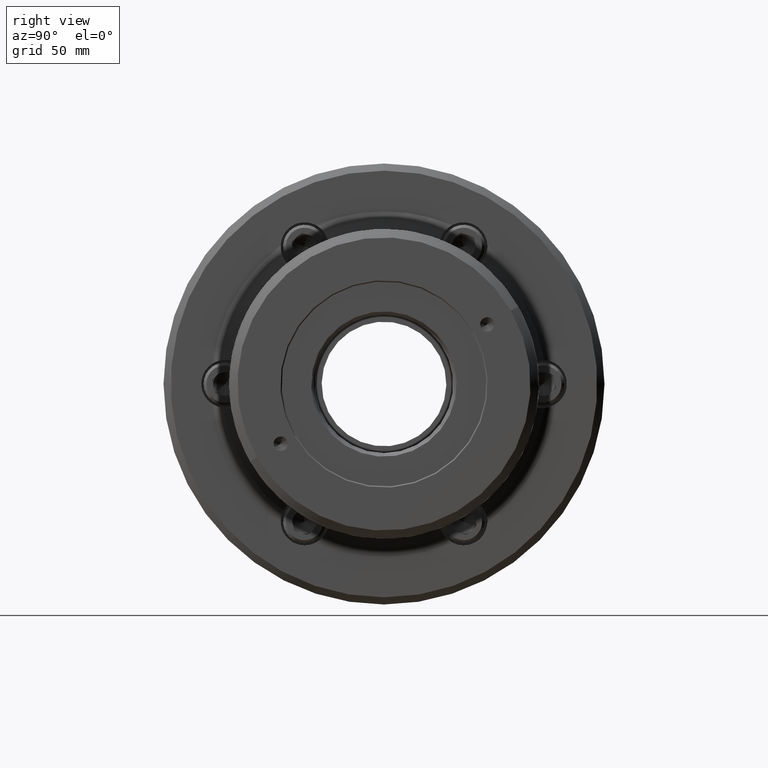
[diagram: clean part render]
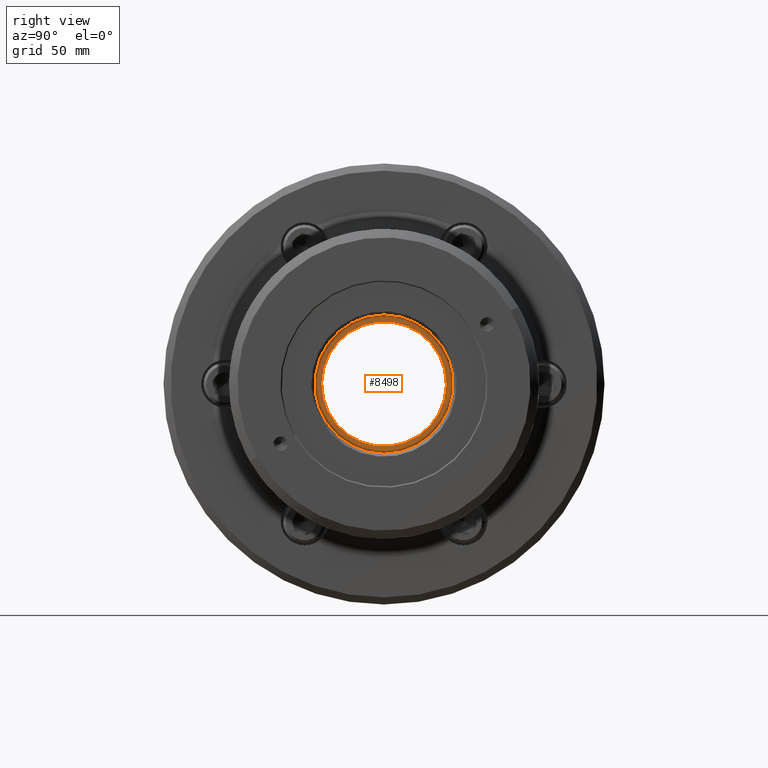
[diagram: same view with one face highlighted and labeled with its STEP entity id]
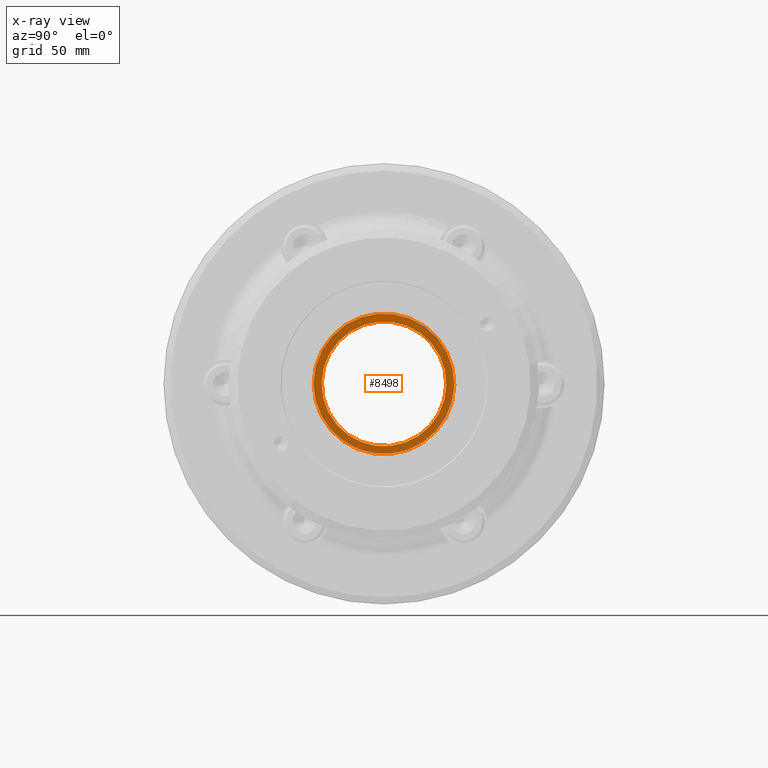
[diagram: x-ray of the same camera — body ghosted, the highlighted face saturated]
A machine part, right view. The second image highlights one B-rep face of the part: STEP entity #8498.
The next image is the same camera in x-ray: the body ghosted, the highlighted face saturated — about 16% of this face is hidden behind the body in this view.
In plain terms, the highlighted planar face has unit normal (-1, -0, -0).
Its self-contained STEP definition (entity closure, byte-faithful):
#48 = CARTESIAN_POINT ( 'NONE',  ( 31.50000000000000000, 3.612708057484691600E-015, -29.50000000000000000 ) ) ;
#247 = EDGE_CURVE ( 'NONE', #9056, #11666, #9130, .T. ) ;
#675 = VERTEX_POINT ( 'NONE', #48 ) ;
#861 = DIRECTION ( 'NONE',  ( 0.0000000000000000000, 0.0000000000000000000, 1.000000000000000000 ) ) ;
#1558 = FACE_OUTER_BOUND ( 'NONE', #7701, .T. ) ;
#2303 = CARTESIAN_POINT ( 'NONE',  ( 31.50000000000000000, 0.0000000000000000000, 0.0000000000000000000 ) ) ;
#2559 = PLANE ( 'NONE',  #10846 ) ;
#3309 = EDGE_CURVE ( 'NONE', #675, #8845, #7971, .T. ) ;
#3482 = DIRECTION ( 'NONE',  ( -0.0000000000000000000, 0.0000000000000000000, 1.000000000000000000 ) ) ;
#4039 = FACE_BOUND ( 'NONE', #7014, .T. ) ;
#4049 = ORIENTED_EDGE ( 'NONE', *, *, #3309, .F. ) ;
#4450 = AXIS2_PLACEMENT_3D ( 'NONE', #2303, #6891, #8076 ) ;
#4563 = DIRECTION ( 'NONE',  ( -1.000000000000000000, -0.0000000000000000000, -0.0000000000000000000 ) ) ;
#5025 = EDGE_CURVE ( 'NONE', #11666, #9056, #10438, .T. ) ;
#5380 = AXIS2_PLACEMENT_3D ( 'NONE', #9343, #9625, #9499 ) ;
#5595 = AXIS2_PLACEMENT_3D ( 'NONE', #11940, #6411, #861 ) ;
#6150 = AXIS2_PLACEMENT_3D ( 'NONE', #10121, #4563, #11058 ) ;
#6174 = CARTESIAN_POINT ( 'NONE',  ( 31.50000000000000000, 29.50000000000000000, 0.0000000000000000000 ) ) ;
#6411 = DIRECTION ( 'NONE',  ( -1.000000000000000000, -0.0000000000000000000, -0.0000000000000000000 ) ) ;
#6891 = DIRECTION ( 'NONE',  ( -1.000000000000000000, -0.0000000000000000000, -0.0000000000000000000 ) ) ;
#7014 = EDGE_LOOP ( 'NONE', ( #9067, #9201 ) ) ;
#7701 = EDGE_LOOP ( 'NONE', ( #10945, #4049 ) ) ;
#7971 = CIRCLE ( 'NONE', #5380, 29.50000000000000000 ) ;
#8076 = DIRECTION ( 'NONE',  ( 0.0000000000000000000, 0.0000000000000000000, 1.000000000000000000 ) ) ;
#8498 = ADVANCED_FACE ( 'NONE', ( #1558, #4039 ), #2559, .F. ) ;
#8503 = CARTESIAN_POINT ( 'NONE',  ( 31.50000000000000000, 0.0000000000000000000, 29.50000000000000000 ) ) ;
#8845 = VERTEX_POINT ( 'NONE', #8503 ) ;
#8944 = CARTESIAN_POINT ( 'NONE',  ( 31.50000000000000000, 3.202451379770328600E-015, -26.14999999999999900 ) ) ;
#8963 = DIRECTION ( 'NONE',  ( -1.000000000000000000, 0.0000000000000000000, -0.0000000000000000000 ) ) ;
#9056 = VERTEX_POINT ( 'NONE', #8944 ) ;
#9067 = ORIENTED_EDGE ( 'NONE', *, *, #5025, .T. ) ;
#9130 = CIRCLE ( 'NONE', #5595, 26.14999999999999900 ) ;
#9201 = ORIENTED_EDGE ( 'NONE', *, *, #247, .T. ) ;
#9343 = CARTESIAN_POINT ( 'NONE',  ( 31.50000000000000000, 0.0000000000000000000, 0.0000000000000000000 ) ) ;
#9499 = DIRECTION ( 'NONE',  ( 0.0000000000000000000, 0.0000000000000000000, 1.000000000000000000 ) ) ;
#9625 = DIRECTION ( 'NONE',  ( -1.000000000000000000, -0.0000000000000000000, -0.0000000000000000000 ) ) ;
#9908 = CARTESIAN_POINT ( 'NONE',  ( 31.50000000000000000, 0.0000000000000000000, 26.14999999999999900 ) ) ;
#10075 = EDGE_CURVE ( 'NONE', #8845, #675, #10222, .T. ) ;
#10121 = CARTESIAN_POINT ( 'NONE',  ( 31.50000000000000000, 0.0000000000000000000, 0.0000000000000000000 ) ) ;
#10222 = CIRCLE ( 'NONE', #6150, 29.50000000000000000 ) ;
#10438 = CIRCLE ( 'NONE', #4450, 26.14999999999999900 ) ;
#10846 = AXIS2_PLACEMENT_3D ( 'NONE', #6174, #8963, #3482 ) ;
#10945 = ORIENTED_EDGE ( 'NONE', *, *, #10075, .F. ) ;
#11058 = DIRECTION ( 'NONE',  ( 0.0000000000000000000, 0.0000000000000000000, 1.000000000000000000 ) ) ;
#11666 = VERTEX_POINT ( 'NONE', #9908 ) ;
#11940 = CARTESIAN_POINT ( 'NONE',  ( 31.50000000000000000, 0.0000000000000000000, 0.0000000000000000000 ) ) ;